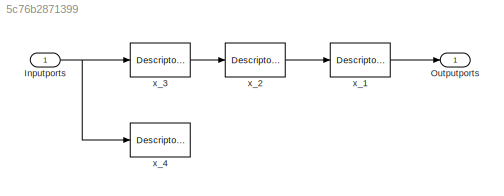
MODEL slx_5c76b2871399
KIND model
CONFIG AbsTol = auto
CONFIG EnableMultiTasking = off
CONFIG FixedStep = auto
CONFIG MaxStep = auto
CONFIG MinStep = auto
CONFIG RelTol = 1e-3
CONFIG SampleTimeConstraint = Unconstrained
CONFIG SolverName = VariableStepAuto
CONFIG StartTime = 0.0
CONFIG StopTime = 10.0
BLOCK [Inport] Inputports
  IconDisplay = Port number and signal name
BLOCK [Outport] Outputports
BLOCK [DescriptorStateSpace] x_1
  A = -2
  C = 0
  D = 0
BLOCK [DescriptorStateSpace] x_2
  A = -2
  C = 0
  D = 0
BLOCK [DescriptorStateSpace] x_3
  A = -2
  C = 0
  D = 0
BLOCK [DescriptorStateSpace] x_4
  A = -2
  C = 0
  D = 0
NET Inputports:1 -> x_3:1, x_4:1
LINE x_1:1 -> Outputports:1
LINE x_2:1 -> x_1:1
LINE x_3:1 -> x_2:1
note: NET lines group one-source signal fan-out (src -> all destinations, sorted); 1:1 wires keep LINE
